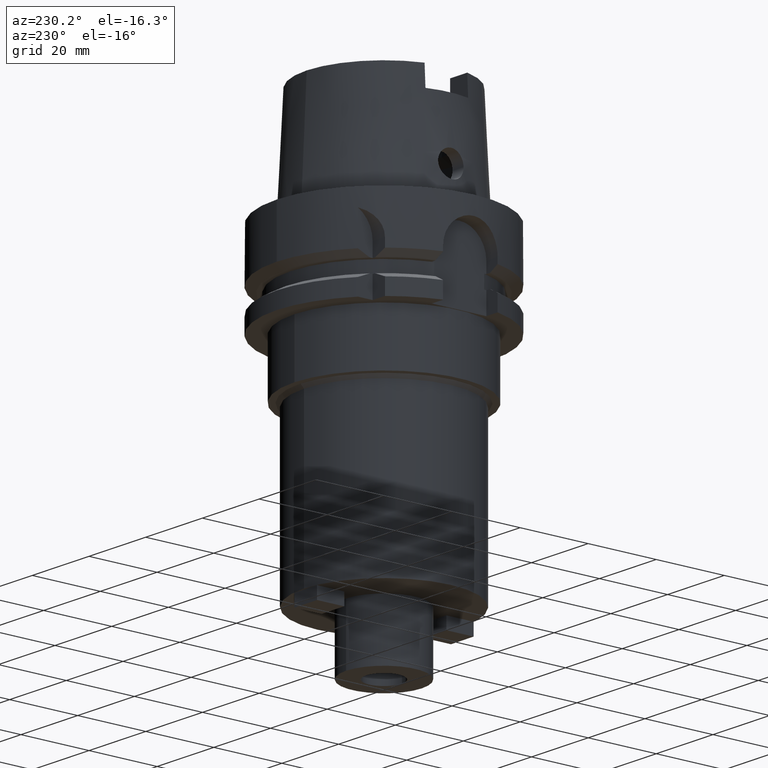
[diagram: clean part render]
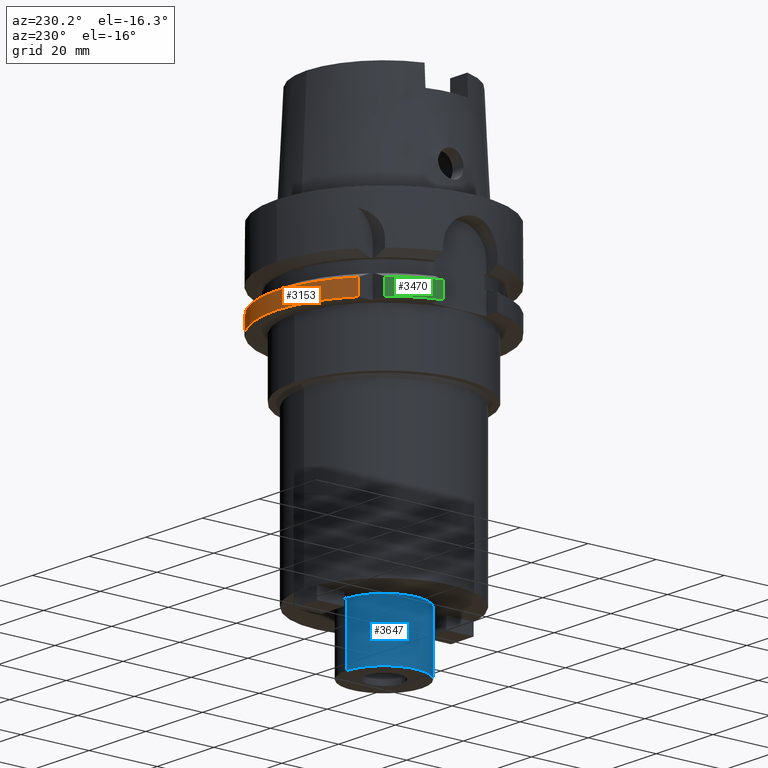
[diagram: same view with three faces highlighted in distinct colors, each labeled with its STEP entity id]
A machine part, auxiliary view with three faces highlighted in distinct colors.
Their STEP definitions:

[orange] entity #3153 — the highlighted cylindrical surface (partial cylindrical patch) has radius 31.5 mm, axis along (0, 0, -1).
#997=CARTESIAN_POINT('',(0.E0,1.701646727415E-14,-2.6E1));
#998=DIRECTION('',(0.E0,0.E0,1.E0));
#999=DIRECTION('',(9.583148474999E-1,2.857142857143E-1,0.E0));
#1000=AXIS2_PLACEMENT_3D('',#997,#998,#999);
#1005=CARTESIAN_POINT('',(0.E0,1.701646727415E-14,-2.6E1));
#1006=DIRECTION('',(0.E0,0.E0,1.E0));
#1007=DIRECTION('',(0.E0,1.E0,0.E0));
#1008=AXIS2_PLACEMENT_3D('',#1005,#1006,#1007);
#1046=DIRECTION('',(-6.539363271905E-7,-5.374187853484E-7,-9.999999999996E-1));
#1047=VECTOR('',#1046,4.622511760003E0);
#1048=CARTESIAN_POINT('',(-1.999999697717E1,2.433618953150E1,-2.137748824E1));
#1049=LINE('',#1048,#1047);
#1053=DIRECTION('',(9.383280154546E-9,-3.147216731811E-8,1.E0));
#1054=VECTOR('',#1053,4.622502098575E0);
#1055=CARTESIAN_POINT('',(3.018691769625E1,9.E0,-2.6E1));
#1056=LINE('',#1055,#1054);
#1457=CARTESIAN_POINT('',(0.E0,0.E0,-2.137749907476E1));
#1458=DIRECTION('',(0.E0,0.E0,-1.E0));
#1459=DIRECTION('',(-6.349206349206E-1,7.725773665802E-1,0.E0));
#1460=AXIS2_PLACEMENT_3D('',#1457,#1458,#1459);
#1465=CARTESIAN_POINT('',(0.E0,0.E0,-2.137749907476E1));
#1466=DIRECTION('',(0.E0,0.E0,-1.E0));
#1467=DIRECTION('',(0.E0,1.E0,0.E0));
#1468=AXIS2_PLACEMENT_3D('',#1465,#1466,#1467);
#2252=CARTESIAN_POINT('',(-2.E1,2.433618704728E1,-2.6E1));
#2254=VERTEX_POINT('',#2252);
#2255=CARTESIAN_POINT('',(-1.999999697717E1,2.433618953150E1,-2.137748824E1));
#2256=VERTEX_POINT('',#2255);
#2284=CARTESIAN_POINT('',(3.018691769625E1,9.E0,-2.6E1));
#2285=VERTEX_POINT('',#2284);
#2286=CARTESIAN_POINT('',(0.E0,3.15E1,-2.6E1));
#2287=VERTEX_POINT('',#2286);
#2453=CARTESIAN_POINT('',(3.018691773962E1,8.999999854520E0,-2.137749790143E1));
#2454=VERTEX_POINT('',#2453);
#2455=CARTESIAN_POINT('',(-1.776356839400E-14,3.15E1,-2.137749907476E1));
#2456=VERTEX_POINT('',#2455);
#3137=CARTESIAN_POINT('',(0.E0,1.701646727415E-14,3.895E1));
#3138=DIRECTION('',(0.E0,0.E0,-1.E0));
#3139=DIRECTION('',(0.E0,-1.E0,0.E0));
#3140=AXIS2_PLACEMENT_3D('',#3137,#3138,#3139);
#3141=CYLINDRICAL_SURFACE('',#3140,3.15E1);
#3142=ORIENTED_EDGE('',*,*,#3126,.T.);
#3143=ORIENTED_EDGE('',*,*,#3109,.F.);
#3144=ORIENTED_EDGE('',*,*,#3107,.F.);
#3146=ORIENTED_EDGE('',*,*,#3145,.T.);
#3148=ORIENTED_EDGE('',*,*,#3147,.F.);
#3150=ORIENTED_EDGE('',*,*,#3149,.F.);
#3151=EDGE_LOOP('',(#3142,#3143,#3144,#3146,#3148,#3150));
#3152=FACE_OUTER_BOUND('',#3151,.F.);
#1001=CIRCLE('',#1000,3.15E1);
#1009=CIRCLE('',#1008,3.15E1);
#1461=CIRCLE('',#1460,3.15E1);
#1469=CIRCLE('',#1468,3.15E1);
#3107=EDGE_CURVE('',#2285,#2287,#1001,.T.);
#3109=EDGE_CURVE('',#2287,#2254,#1009,.T.);
#3126=EDGE_CURVE('',#2256,#2254,#1049,.T.);
#3145=EDGE_CURVE('',#2285,#2454,#1056,.T.);
#3147=EDGE_CURVE('',#2456,#2454,#1469,.T.);
#3149=EDGE_CURVE('',#2256,#2456,#1461,.T.);
#3153=ADVANCED_FACE('',(#3152),#3141,.T.);

[blue] entity #3647 — the highlighted cylindrical surface (partial cylindrical patch) has radius 11.1125 mm, axis along (0, 0, -1).
#1659=CARTESIAN_POINT('',(0.E0,1.701646727415E-14,-9.E1));
#1660=DIRECTION('',(0.E0,0.E0,-1.E0));
#1661=DIRECTION('',(0.E0,-1.E0,0.E0));
#1662=AXIS2_PLACEMENT_3D('',#1659,#1660,#1661);
#1703=DIRECTION('',(0.E0,0.E0,-1.E0));
#1704=VECTOR('',#1703,1.7E1);
#1705=CARTESIAN_POINT('',(0.E0,-1.11125E1,-9.E1));
#1706=LINE('',#1705,#1704);
#1710=DIRECTION('',(0.E0,0.E0,-1.E0));
#1711=VECTOR('',#1710,1.7E1);
#1712=CARTESIAN_POINT('',(0.E0,1.11125E1,-9.E1));
#1713=LINE('',#1712,#1711);
#1725=CARTESIAN_POINT('',(0.E0,1.701646727415E-14,-1.07E2));
#1726=DIRECTION('',(0.E0,0.E0,1.E0));
#1727=DIRECTION('',(0.E0,1.E0,0.E0));
#1728=AXIS2_PLACEMENT_3D('',#1725,#1726,#1727);
#2308=CARTESIAN_POINT('',(0.E0,-1.11125E1,-9.E1));
#2309=CARTESIAN_POINT('',(0.E0,1.11125E1,-9.E1));
#2310=VERTEX_POINT('',#2308);
#2311=VERTEX_POINT('',#2309);
#2328=CARTESIAN_POINT('',(0.E0,1.11125E1,-1.07E2));
#2329=VERTEX_POINT('',#2328);
#2330=CARTESIAN_POINT('',(0.E0,-1.11125E1,-1.07E2));
#2331=VERTEX_POINT('',#2330);
#3633=CARTESIAN_POINT('',(0.E0,1.701646727415E-14,3.895E1));
#3634=DIRECTION('',(0.E0,0.E0,-1.E0));
#3635=DIRECTION('',(0.E0,-1.E0,0.E0));
#3636=AXIS2_PLACEMENT_3D('',#3633,#3634,#3635);
#3637=CYLINDRICAL_SURFACE('',#3636,1.11125E1);
#3639=ORIENTED_EDGE('',*,*,#3638,.F.);
#3640=ORIENTED_EDGE('',*,*,#3606,.F.);
#3642=ORIENTED_EDGE('',*,*,#3641,.T.);
#3644=ORIENTED_EDGE('',*,*,#3643,.F.);
#3645=EDGE_LOOP('',(#3639,#3640,#3642,#3644));
#3646=FACE_OUTER_BOUND('',#3645,.F.);
#1663=CIRCLE('',#1662,1.11125E1);
#1729=CIRCLE('',#1728,1.11125E1);
#3606=EDGE_CURVE('',#2310,#2311,#1663,.T.);
#3638=EDGE_CURVE('',#2311,#2329,#1713,.T.);
#3641=EDGE_CURVE('',#2310,#2331,#1706,.T.);
#3643=EDGE_CURVE('',#2329,#2331,#1729,.T.);
#3647=ADVANCED_FACE('',(#3646),#3637,.T.);

[green] entity #3470 — the highlighted cylindrical surface (partial cylindrical patch) has radius 31.5 mm, axis along (0, 0, -1).
#952=CARTESIAN_POINT('',(0.E0,1.701646727415E-14,-2.6E1));
#953=DIRECTION('',(0.E0,0.E0,1.E0));
#954=DIRECTION('',(-7.725773665802E-1,6.349206349206E-1,0.E0));
#955=AXIS2_PLACEMENT_3D('',#952,#953,#954);
#1497=DIRECTION('',(2.449025662931E-6,2.979992287668E-6,9.999999999926E-1));
#1498=VECTOR('',#1497,4.622451541952E0);
#1499=CARTESIAN_POINT('',(-2.433618704728E1,2.E1,-2.6E1));
#1500=LINE('',#1499,#1498);
#1504=DIRECTION('',(-2.696599350242E-8,-1.026975721085E-7,-1.E0));
#1505=VECTOR('',#1504,4.622496615793E0);
#1506=CARTESIAN_POINT('',(-3.046719534851E1,8.000000474720E0,
-2.137750338421E1));
#1507=LINE('',#1506,#1505);
#1530=CARTESIAN_POINT('',(-2.433617572678E1,2.000001377487E1,
-2.137754845808E1));
#1545=CARTESIAN_POINT('',(0.E0,0.E0,-2.137749907476E1));
#1546=DIRECTION('',(0.E0,0.E0,-1.E0));
#1547=DIRECTION('',(-9.672125547036E-1,2.539682539683E-1,0.E0));
#1548=AXIS2_PLACEMENT_3D('',#1545,#1546,#1547);
#2266=CARTESIAN_POINT('',(-2.433618704728E1,2.E1,-2.6E1));
#2267=VERTEX_POINT('',#2266);
#2268=CARTESIAN_POINT('',(-3.046719547316E1,8.E0,-2.6E1));
#2269=VERTEX_POINT('',#2268);
#2394=VERTEX_POINT('',#1530);
#2443=CARTESIAN_POINT('',(-3.046719534851E1,8.000000474720E0,
-2.137750338421E1));
#2444=VERTEX_POINT('',#2443);
#3457=CARTESIAN_POINT('',(0.E0,1.701646727415E-14,3.895E1));
#3458=DIRECTION('',(0.E0,0.E0,-1.E0));
#3459=DIRECTION('',(0.E0,-1.E0,0.E0));
#3460=AXIS2_PLACEMENT_3D('',#3457,#3458,#3459);
#3461=CYLINDRICAL_SURFACE('',#3460,3.15E1);
#3463=ORIENTED_EDGE('',*,*,#3462,.T.);
#3465=ORIENTED_EDGE('',*,*,#3464,.F.);
#3466=ORIENTED_EDGE('',*,*,#3448,.T.);
#3467=ORIENTED_EDGE('',*,*,#3090,.F.);
#3468=EDGE_LOOP('',(#3463,#3465,#3466,#3467));
#3469=FACE_OUTER_BOUND('',#3468,.F.);
#956=CIRCLE('',#955,3.15E1);
#1549=CIRCLE('',#1548,3.15E1);
#3090=EDGE_CURVE('',#2267,#2269,#956,.T.);
#3448=EDGE_CURVE('',#2444,#2269,#1507,.T.);
#3462=EDGE_CURVE('',#2267,#2394,#1500,.T.);
#3464=EDGE_CURVE('',#2444,#2394,#1549,.T.);
#3470=ADVANCED_FACE('',(#3469),#3461,.T.);